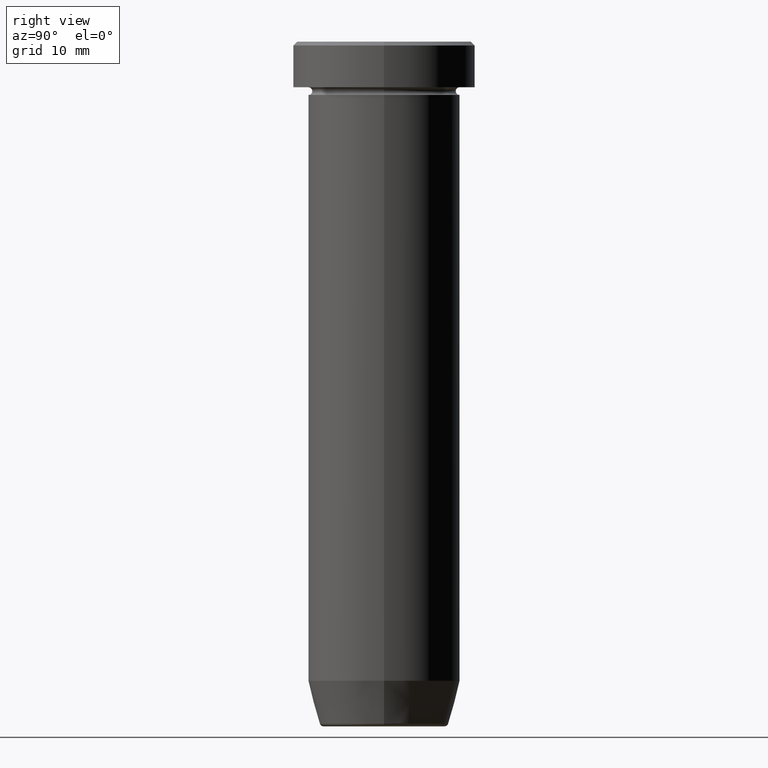
[diagram: clean part render]
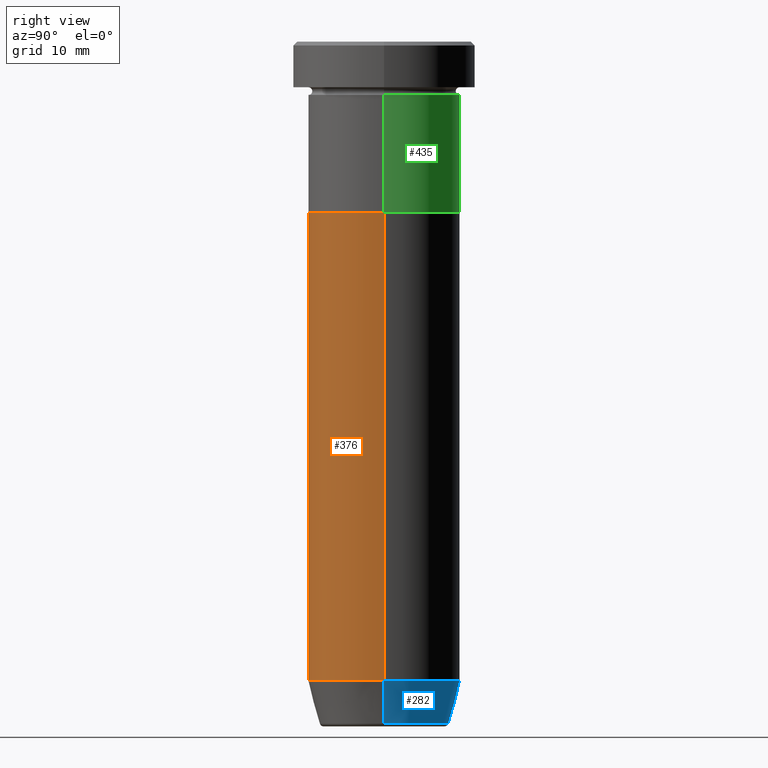
[diagram: same view with three faces highlighted in distinct colors, each labeled with its STEP entity id]
A machine part, right view with three faces highlighted in distinct colors.
Their STEP definitions:

[orange] entity #376 — the highlighted cylindrical surface (partial cylindrical patch) has radius 10 mm, axis along (-0, -0, 1).
#19 = CARTESIAN_POINT ( 'NONE',  ( 10.00000000000000000, 0.000000000000000000, -22.50000000000000000 ) ) ;
#21 = FACE_OUTER_BOUND ( 'NONE', #390, .T. ) ;
#23 = DIRECTION ( 'NONE',  ( 1.000000000000000000, 0.000000000000000000, 0.000000000000000000 ) ) ;
#30 = VECTOR ( 'NONE', #349, 1000.000000000000000 ) ;
#60 = VECTOR ( 'NONE', #150, 1000.000000000000000 ) ;
#72 = ORIENTED_EDGE ( 'NONE', *, *, #175, .F. ) ;
#105 = EDGE_CURVE ( 'NONE', #503, #208, #541, .T. ) ;
#126 = AXIS2_PLACEMENT_3D ( 'NONE', #404, #127, #270 ) ;
#127 = DIRECTION ( 'NONE',  ( -0.000000000000000000, -0.000000000000000000, 1.000000000000000000 ) ) ;
#149 = DIRECTION ( 'NONE',  ( 1.000000000000000000, 0.000000000000000000, 0.000000000000000000 ) ) ;
#150 = DIRECTION ( 'NONE',  ( -0.000000000000000000, -0.000000000000000000, 1.000000000000000000 ) ) ;
#162 = ORIENTED_EDGE ( 'NONE', *, *, #105, .T. ) ;
#175 = EDGE_CURVE ( 'NONE', #503, #457, #210, .T. ) ;
#187 = LINE ( 'NONE', #429, #60 ) ;
#193 = DIRECTION ( 'NONE',  ( -0.000000000000000000, -0.000000000000000000, 1.000000000000000000 ) ) ;
#203 = CARTESIAN_POINT ( 'NONE',  ( -9.999999999999998224, 1.224646799147353059E-15, 0.000000000000000000 ) ) ;
#208 = VERTEX_POINT ( 'NONE', #380 ) ;
#210 = LINE ( 'NONE', #203, #30 ) ;
#214 = DIRECTION ( 'NONE',  ( -0.000000000000000000, -0.000000000000000000, 1.000000000000000000 ) ) ;
#270 = DIRECTION ( 'NONE',  ( 1.000000000000000000, 0.000000000000000000, 0.000000000000000000 ) ) ;
#288 = ORIENTED_EDGE ( 'NONE', *, *, #298, .T. ) ;
#298 = EDGE_CURVE ( 'NONE', #208, #443, #187, .T. ) ;
#349 = DIRECTION ( 'NONE',  ( -0.000000000000000000, -0.000000000000000000, 1.000000000000000000 ) ) ;
#358 = CARTESIAN_POINT ( 'NONE',  ( -9.999999999999998224, 1.224646799147353059E-15, -83.99999999999998579 ) ) ;
#376 = ADVANCED_FACE ( 'NONE', ( #21 ), #394, .T. ) ;
#380 = CARTESIAN_POINT ( 'NONE',  ( 9.999999999999998224, 0.000000000000000000, -83.99999999999998579 ) ) ;
#390 = EDGE_LOOP ( 'NONE', ( #72, #162, #288, #412 ) ) ;
#394 = CYLINDRICAL_SURFACE ( 'NONE', #475, 9.999999999999998224 ) ;
#404 = CARTESIAN_POINT ( 'NONE',  ( 0.000000000000000000, 0.000000000000000000, -22.50000000000000000 ) ) ;
#406 = CIRCLE ( 'NONE', #126, 10.00000000000000000 ) ;
#412 = ORIENTED_EDGE ( 'NONE', *, *, #586, .F. ) ;
#426 = CARTESIAN_POINT ( 'NONE',  ( 0.000000000000000000, 0.000000000000000000, -83.99999999999998579 ) ) ;
#429 = CARTESIAN_POINT ( 'NONE',  ( 9.999999999999998224, 0.000000000000000000, 0.000000000000000000 ) ) ;
#438 = CARTESIAN_POINT ( 'NONE',  ( 0.000000000000000000, 0.000000000000000000, 0.000000000000000000 ) ) ;
#442 = CARTESIAN_POINT ( 'NONE',  ( -10.00000000000000000, 1.224646799147353256E-15, -22.50000000000000000 ) ) ;
#443 = VERTEX_POINT ( 'NONE', #19 ) ;
#457 = VERTEX_POINT ( 'NONE', #442 ) ;
#475 = AXIS2_PLACEMENT_3D ( 'NONE', #438, #214, #23 ) ;
#503 = VERTEX_POINT ( 'NONE', #358 ) ;
#533 = AXIS2_PLACEMENT_3D ( 'NONE', #426, #193, #149 ) ;
#541 = CIRCLE ( 'NONE', #533, 9.999999999999998224 ) ;
#586 = EDGE_CURVE ( 'NONE', #457, #443, #406, .T. ) ;

[blue] entity #282 — the highlighted conical surface has half-angle 15 deg.
#16 = LINE ( 'NONE', #569, #39 ) ;
#39 = VECTOR ( 'NONE', #235, 1000.000000000000000 ) ;
#50 = CONICAL_SURFACE ( 'NONE', #324, 8.392304845413260495, 0.2617993877991495744 ) ;
#59 = DIRECTION ( 'NONE',  ( -0.000000000000000000, -0.000000000000000000, 1.000000000000000000 ) ) ;
#120 = DIRECTION ( 'NONE',  ( -1.000000000000000000, 0.000000000000000000, 0.000000000000000000 ) ) ;
#143 = DIRECTION ( 'NONE',  ( -0.000000000000000000, -0.000000000000000000, 1.000000000000000000 ) ) ;
#168 = CARTESIAN_POINT ( 'NONE',  ( -8.491604264568310967, 1.132284198685156190E-15, -89.62940952255124216 ) ) ;
#195 = DIRECTION ( 'NONE',  ( 1.000000000000000000, 0.000000000000000000, 0.000000000000000000 ) ) ;
#208 = VERTEX_POINT ( 'NONE', #380 ) ;
#235 = DIRECTION ( 'NONE',  ( -0.2588190451025209060, 3.169619151431766790E-17, 0.9659258262890682012 ) ) ;
#252 = VERTEX_POINT ( 'NONE', #287 ) ;
#256 = AXIS2_PLACEMENT_3D ( 'NONE', #258, #538, #120 ) ;
#258 = CARTESIAN_POINT ( 'NONE',  ( 0.000000000000000000, 0.000000000000000000, -89.62940952255124216 ) ) ;
#272 = EDGE_CURVE ( 'NONE', #528, #503, #16, .T. ) ;
#282 = ADVANCED_FACE ( 'NONE', ( #338 ), #50, .T. ) ;
#283 = CARTESIAN_POINT ( 'NONE',  ( 0.000000000000000000, 0.000000000000000000, -83.99999999999998579 ) ) ;
#287 = CARTESIAN_POINT ( 'NONE',  ( 8.491604264568310967, 0.000000000000000000, -89.62940952255124216 ) ) ;
#289 = CARTESIAN_POINT ( 'NONE',  ( 8.392304845413260495, 0.000000000000000000, -90.00000000000000000 ) ) ;
#308 = VECTOR ( 'NONE', #471, 1000.000000000000000 ) ;
#309 = ORIENTED_EDGE ( 'NONE', *, *, #441, .T. ) ;
#311 = EDGE_CURVE ( 'NONE', #208, #503, #448, .T. ) ;
#317 = EDGE_LOOP ( 'NONE', ( #309, #550, #489, #428 ) ) ;
#324 = AXIS2_PLACEMENT_3D ( 'NONE', #469, #143, #474 ) ;
#338 = FACE_OUTER_BOUND ( 'NONE', #317, .T. ) ;
#357 = EDGE_CURVE ( 'NONE', #252, #208, #516, .T. ) ;
#358 = CARTESIAN_POINT ( 'NONE',  ( -9.999999999999998224, 1.224646799147353059E-15, -83.99999999999998579 ) ) ;
#380 = CARTESIAN_POINT ( 'NONE',  ( 9.999999999999998224, 0.000000000000000000, -83.99999999999998579 ) ) ;
#428 = ORIENTED_EDGE ( 'NONE', *, *, #357, .F. ) ;
#441 = EDGE_CURVE ( 'NONE', #252, #528, #515, .T. ) ;
#448 = CIRCLE ( 'NONE', #526, 9.999999999999998224 ) ;
#469 = CARTESIAN_POINT ( 'NONE',  ( 0.000000000000000000, 0.000000000000000000, -90.00000000000000000 ) ) ;
#471 = DIRECTION ( 'NONE',  ( 0.2588190451025209060, 0.000000000000000000, 0.9659258262890682012 ) ) ;
#474 = DIRECTION ( 'NONE',  ( 1.000000000000000000, 0.000000000000000000, 0.000000000000000000 ) ) ;
#489 = ORIENTED_EDGE ( 'NONE', *, *, #311, .F. ) ;
#503 = VERTEX_POINT ( 'NONE', #358 ) ;
#515 = CIRCLE ( 'NONE', #256, 8.491604264568310967 ) ;
#516 = LINE ( 'NONE', #289, #308 ) ;
#526 = AXIS2_PLACEMENT_3D ( 'NONE', #283, #59, #195 ) ;
#528 = VERTEX_POINT ( 'NONE', #168 ) ;
#538 = DIRECTION ( 'NONE',  ( -0.000000000000000000, -0.000000000000000000, 1.000000000000000000 ) ) ;
#550 = ORIENTED_EDGE ( 'NONE', *, *, #272, .T. ) ;
#569 = CARTESIAN_POINT ( 'NONE',  ( -8.392304845413260495, 1.027760926640417114E-15, -90.00000000000000000 ) ) ;

[green] entity #435 — the highlighted cylindrical surface (partial cylindrical patch) has radius 10 mm, axis along (-0, -0, 1).
#17 = EDGE_CURVE ( 'NONE', #88, #547, #82, .T. ) ;
#26 = DIRECTION ( 'NONE',  ( 1.000000000000000000, 0.000000000000000000, 0.000000000000000000 ) ) ;
#71 = CYLINDRICAL_SURFACE ( 'NONE', #536, 10.00000000000000000 ) ;
#82 = LINE ( 'NONE', #369, #463 ) ;
#88 = VERTEX_POINT ( 'NONE', #112 ) ;
#89 = CIRCLE ( 'NONE', #128, 10.00000000000000000 ) ;
#99 = ORIENTED_EDGE ( 'NONE', *, *, #17, .T. ) ;
#112 = CARTESIAN_POINT ( 'NONE',  ( -10.00000000000000000, 1.224646799147353256E-15, -22.50000000000000000 ) ) ;
#128 = AXIS2_PLACEMENT_3D ( 'NONE', #375, #189, #517 ) ;
#152 = EDGE_CURVE ( 'NONE', #364, #547, #89, .T. ) ;
#153 = DIRECTION ( 'NONE',  ( -0.000000000000000000, -0.000000000000000000, 1.000000000000000000 ) ) ;
#171 = CIRCLE ( 'NONE', #295, 10.00000000000000000 ) ;
#189 = DIRECTION ( 'NONE',  ( -0.000000000000000000, -0.000000000000000000, 1.000000000000000000 ) ) ;
#198 = ORIENTED_EDGE ( 'NONE', *, *, #152, .F. ) ;
#247 = EDGE_LOOP ( 'NONE', ( #525, #99, #198, #450 ) ) ;
#292 = CARTESIAN_POINT ( 'NONE',  ( 10.00000000000000000, 0.000000000000000000, -22.50000000000000000 ) ) ;
#295 = AXIS2_PLACEMENT_3D ( 'NONE', #328, #336, #513 ) ;
#297 = VERTEX_POINT ( 'NONE', #292 ) ;
#328 = CARTESIAN_POINT ( 'NONE',  ( 0.000000000000000000, 0.000000000000000000, -22.50000000000000000 ) ) ;
#335 = EDGE_CURVE ( 'NONE', #297, #88, #171, .T. ) ;
#336 = DIRECTION ( 'NONE',  ( -0.000000000000000000, -0.000000000000000000, 1.000000000000000000 ) ) ;
#342 = DIRECTION ( 'NONE',  ( -0.000000000000000000, -0.000000000000000000, 1.000000000000000000 ) ) ;
#356 = DIRECTION ( 'NONE',  ( -0.000000000000000000, -0.000000000000000000, 1.000000000000000000 ) ) ;
#364 = VERTEX_POINT ( 'NONE', #425 ) ;
#369 = CARTESIAN_POINT ( 'NONE',  ( -10.00000000000000000, 1.224646799147353256E-15, 0.000000000000000000 ) ) ;
#375 = CARTESIAN_POINT ( 'NONE',  ( 0.000000000000000000, 0.000000000000000000, -6.999999999999999112 ) ) ;
#379 = VECTOR ( 'NONE', #342, 1000.000000000000000 ) ;
#398 = FACE_OUTER_BOUND ( 'NONE', #247, .T. ) ;
#399 = EDGE_CURVE ( 'NONE', #297, #364, #444, .T. ) ;
#425 = CARTESIAN_POINT ( 'NONE',  ( 10.00000000000000000, 0.000000000000000000, -6.999999999999999112 ) ) ;
#435 = ADVANCED_FACE ( 'NONE', ( #398 ), #71, .T. ) ;
#444 = LINE ( 'NONE', #579, #379 ) ;
#447 = CARTESIAN_POINT ( 'NONE',  ( 0.000000000000000000, 0.000000000000000000, 0.000000000000000000 ) ) ;
#450 = ORIENTED_EDGE ( 'NONE', *, *, #399, .F. ) ;
#463 = VECTOR ( 'NONE', #356, 1000.000000000000000 ) ;
#513 = DIRECTION ( 'NONE',  ( 1.000000000000000000, 0.000000000000000000, 0.000000000000000000 ) ) ;
#517 = DIRECTION ( 'NONE',  ( 1.000000000000000000, 0.000000000000000000, 0.000000000000000000 ) ) ;
#525 = ORIENTED_EDGE ( 'NONE', *, *, #335, .T. ) ;
#536 = AXIS2_PLACEMENT_3D ( 'NONE', #447, #153, #26 ) ;
#547 = VERTEX_POINT ( 'NONE', #588 ) ;
#579 = CARTESIAN_POINT ( 'NONE',  ( 10.00000000000000000, 0.000000000000000000, 0.000000000000000000 ) ) ;
#588 = CARTESIAN_POINT ( 'NONE',  ( -10.00000000000000000, 1.224646799147353256E-15, -6.999999999999999112 ) ) ;